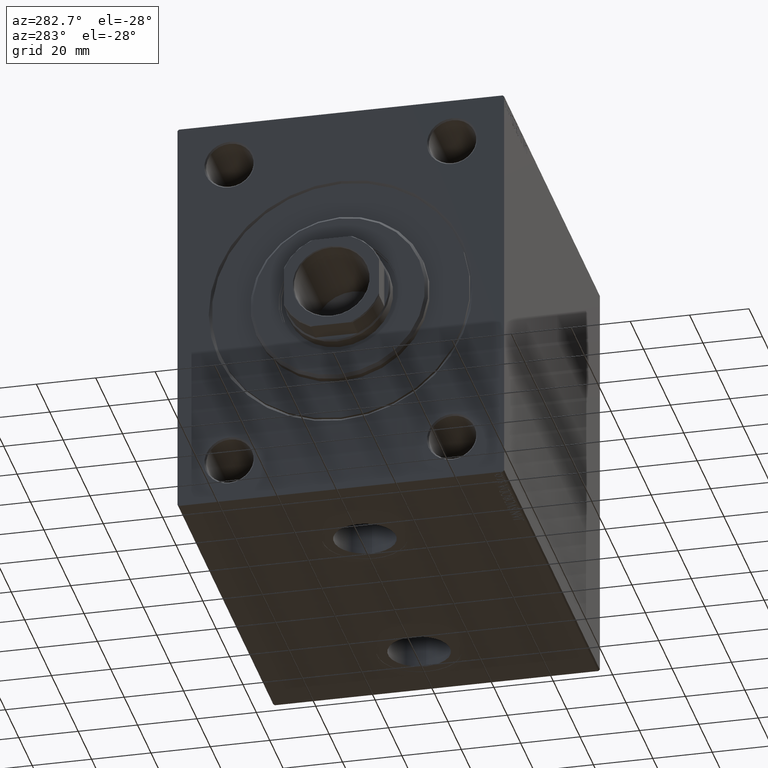
[diagram: clean part render]
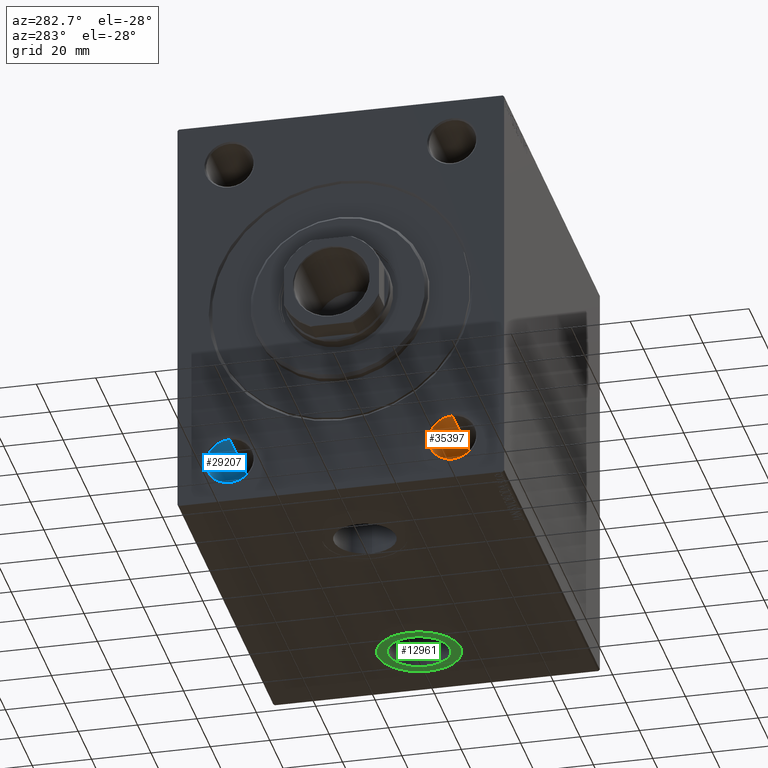
[diagram: same view with three faces highlighted in distinct colors, each labeled with its STEP entity id]
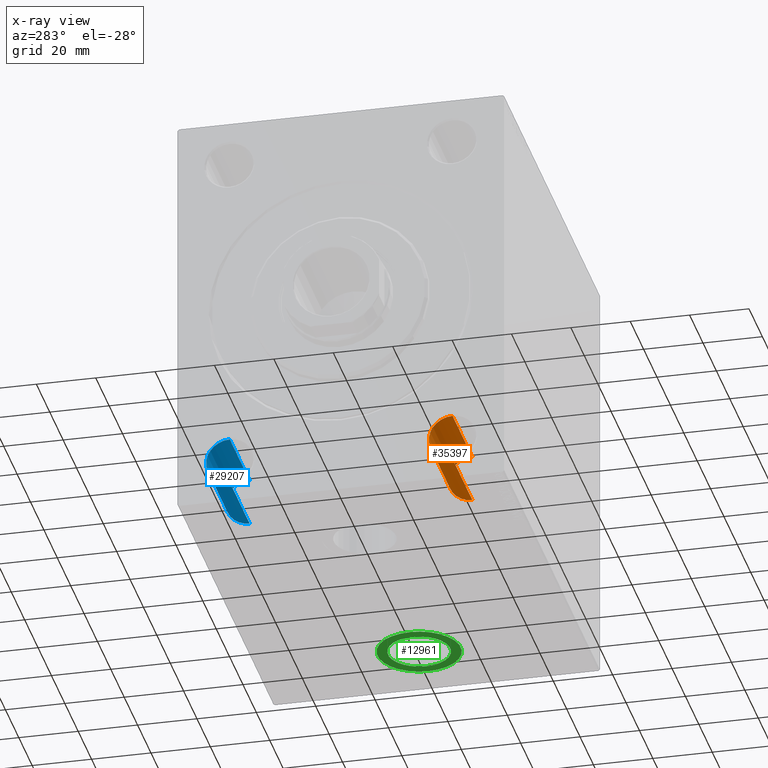
[diagram: x-ray of the same camera — body ghosted, the three highlighted faces saturated]
A machine part, auxiliary view with three faces highlighted in distinct colors.
The next image is the same camera in x-ray (body ghosted, the three faces saturated) — at least one of them is partly hidden behind the body in this view.
Their STEP definitions:

[orange] entity #35397 — the highlighted cylindrical surface (edge-blend (fillet) strip) has radius 8 mm, axis along (-1, -0, -0).
#979 = AXIS2_PLACEMENT_3D ( 'NONE', #16948, #34748, #27132 ) ;
#3026 = VECTOR ( 'NONE', #32262, 1000.000000000000000 ) ;
#3321 = FACE_OUTER_BOUND ( 'NONE', #5058, .T. ) ;
#3616 = EDGE_CURVE ( 'NONE', #7433, #33756, #38528, .T. ) ;
#4703 = ORIENTED_EDGE ( 'NONE', *, *, #44274, .F. ) ;
#4766 = VERTEX_POINT ( 'NONE', #30347 ) ;
#5058 = EDGE_LOOP ( 'NONE', ( #10330, #4703, #15222, #37517 ) ) ;
#6881 = CARTESIAN_POINT ( 'NONE',  ( 0.000000000000000000, -37.49999999999999289, -62.99999999999998579 ) ) ;
#7433 = VERTEX_POINT ( 'NONE', #33721 ) ;
#10330 = ORIENTED_EDGE ( 'NONE', *, *, #3616, .F. ) ;
#13629 = DIRECTION ( 'NONE',  ( -1.000000000000000000, -0.000000000000000000, -0.000000000000000000 ) ) ;
#14078 = CARTESIAN_POINT ( 'NONE',  ( 0.000000000000000000, -37.49999999999999289, -47.00000000000000000 ) ) ;
#14757 = EDGE_CURVE ( 'NONE', #18479, #4766, #30499, .T. ) ;
#15222 = ORIENTED_EDGE ( 'NONE', *, *, #14757, .T. ) ;
#16948 = CARTESIAN_POINT ( 'NONE',  ( 0.000000000000000000, -37.49999999999999289, -54.99999999999999289 ) ) ;
#18208 = DIRECTION ( 'NONE',  ( -1.000000000000000000, 0.000000000000000000, 0.000000000000000000 ) ) ;
#18479 = VERTEX_POINT ( 'NONE', #20410 ) ;
#20338 = CIRCLE ( 'NONE', #35849, 7.999999999999992895 ) ;
#20410 = CARTESIAN_POINT ( 'NONE',  ( 30.00000000000000000, -37.49999999999999289, -47.00000000000000000 ) ) ;
#21667 = DIRECTION ( 'NONE',  ( 0.000000000000000000, 0.000000000000000000, -1.000000000000000000 ) ) ;
#22478 = AXIS2_PLACEMENT_3D ( 'NONE', #29058, #18208, #21667 ) ;
#23143 = EDGE_CURVE ( 'NONE', #4766, #33756, #24676, .T. ) ;
#23655 = CYLINDRICAL_SURFACE ( 'NONE', #979, 7.999999999999992895 ) ;
#24676 = CIRCLE ( 'NONE', #22478, 7.999999999999992895 ) ;
#27132 = DIRECTION ( 'NONE',  ( 0.000000000000000000, 0.000000000000000000, 1.000000000000000000 ) ) ;
#29058 = CARTESIAN_POINT ( 'NONE',  ( 0.5000000000000125455, -37.49999999999999289, -54.99999999999999289 ) ) ;
#29442 = CARTESIAN_POINT ( 'NONE',  ( 30.00000000000000000, -37.49999999999999289, -54.99999999999999289 ) ) ;
#30347 = CARTESIAN_POINT ( 'NONE',  ( 0.5000000000000125455, -37.49999999999999289, -47.00000000000000000 ) ) ;
#30499 = LINE ( 'NONE', #14078, #39330 ) ;
#32262 = DIRECTION ( 'NONE',  ( -1.000000000000000000, -0.000000000000000000, -0.000000000000000000 ) ) ;
#32917 = DIRECTION ( 'NONE',  ( -1.000000000000000000, -0.000000000000000000, -0.000000000000000000 ) ) ;
#33721 = CARTESIAN_POINT ( 'NONE',  ( 30.00000000000000000, -37.49999999999999289, -62.99999999999998579 ) ) ;
#33756 = VERTEX_POINT ( 'NONE', #37728 ) ;
#34748 = DIRECTION ( 'NONE',  ( -1.000000000000000000, -0.000000000000000000, -0.000000000000000000 ) ) ;
#35397 = ADVANCED_FACE ( 'NONE', ( #3321 ), #23655, .F. ) ;
#35849 = AXIS2_PLACEMENT_3D ( 'NONE', #29442, #32917, #36157 ) ;
#36157 = DIRECTION ( 'NONE',  ( 0.000000000000000000, 0.000000000000000000, 1.000000000000000000 ) ) ;
#37517 = ORIENTED_EDGE ( 'NONE', *, *, #23143, .T. ) ;
#37728 = CARTESIAN_POINT ( 'NONE',  ( 0.5000000000000125455, -37.49999999999999289, -62.99999999999998579 ) ) ;
#38528 = LINE ( 'NONE', #6881, #3026 ) ;
#39330 = VECTOR ( 'NONE', #13629, 1000.000000000000000 ) ;
#44274 = EDGE_CURVE ( 'NONE', #18479, #7433, #20338, .T. ) ;

[blue] entity #29207 — the highlighted cylindrical surface (edge-blend (fillet) strip) has radius 8 mm, axis along (-1, -0, -0).
#1560 = DIRECTION ( 'NONE',  ( -1.000000000000000000, -0.000000000000000000, -0.000000000000000000 ) ) ;
#3460 = EDGE_CURVE ( 'NONE', #41473, #12098, #4208, .T. ) ;
#4170 = CARTESIAN_POINT ( 'NONE',  ( 0.000000000000000000, 37.50000000000000000, -47.00000000000000000 ) ) ;
#4208 = LINE ( 'NONE', #5531, #34006 ) ;
#4814 = CYLINDRICAL_SURFACE ( 'NONE', #16736, 7.999999999999992895 ) ;
#5531 = CARTESIAN_POINT ( 'NONE',  ( 0.000000000000000000, 37.50000000000000000, -62.99999999999998579 ) ) ;
#7066 = DIRECTION ( 'NONE',  ( -1.000000000000000000, 0.000000000000000000, 0.000000000000000000 ) ) ;
#8856 = EDGE_CURVE ( 'NONE', #36915, #41473, #15592, .T. ) ;
#9140 = ORIENTED_EDGE ( 'NONE', *, *, #3460, .F. ) ;
#10046 = CARTESIAN_POINT ( 'NONE',  ( 30.00000000000000000, 37.50000000000000000, -54.99999999999999289 ) ) ;
#11959 = CARTESIAN_POINT ( 'NONE',  ( 0.000000000000000000, 37.50000000000000000, -54.99999999999999289 ) ) ;
#12098 = VERTEX_POINT ( 'NONE', #37289 ) ;
#12488 = CARTESIAN_POINT ( 'NONE',  ( 30.00000000000000000, 37.50000000000000000, -47.00000000000000000 ) ) ;
#14403 = VECTOR ( 'NONE', #31637, 1000.000000000000000 ) ;
#15592 = CIRCLE ( 'NONE', #44364, 7.999999999999992895 ) ;
#15648 = DIRECTION ( 'NONE',  ( 0.000000000000000000, 0.000000000000000000, 1.000000000000000000 ) ) ;
#16106 = EDGE_LOOP ( 'NONE', ( #9140, #31442, #40850, #23892 ) ) ;
#16736 = AXIS2_PLACEMENT_3D ( 'NONE', #11959, #1560, #15648 ) ;
#17561 = LINE ( 'NONE', #4170, #14403 ) ;
#18199 = EDGE_CURVE ( 'NONE', #18412, #12098, #28345, .T. ) ;
#18412 = VERTEX_POINT ( 'NONE', #41430 ) ;
#19617 = DIRECTION ( 'NONE',  ( -1.000000000000000000, -0.000000000000000000, -0.000000000000000000 ) ) ;
#23454 = DIRECTION ( 'NONE',  ( -1.000000000000000000, -0.000000000000000000, -0.000000000000000000 ) ) ;
#23892 = ORIENTED_EDGE ( 'NONE', *, *, #18199, .T. ) ;
#25405 = AXIS2_PLACEMENT_3D ( 'NONE', #35010, #7066, #27165 ) ;
#27165 = DIRECTION ( 'NONE',  ( 0.000000000000000000, 0.000000000000000000, -1.000000000000000000 ) ) ;
#28345 = CIRCLE ( 'NONE', #25405, 7.999999999999992895 ) ;
#29207 = ADVANCED_FACE ( 'NONE', ( #36455 ), #4814, .F. ) ;
#31442 = ORIENTED_EDGE ( 'NONE', *, *, #8856, .F. ) ;
#31637 = DIRECTION ( 'NONE',  ( -1.000000000000000000, -0.000000000000000000, -0.000000000000000000 ) ) ;
#34006 = VECTOR ( 'NONE', #19617, 1000.000000000000000 ) ;
#35010 = CARTESIAN_POINT ( 'NONE',  ( 0.5000000000000386358, 37.50000000000000000, -54.99999999999999289 ) ) ;
#36455 = FACE_OUTER_BOUND ( 'NONE', #16106, .T. ) ;
#36915 = VERTEX_POINT ( 'NONE', #12488 ) ;
#37289 = CARTESIAN_POINT ( 'NONE',  ( 0.5000000000000386358, 37.50000000000000000, -62.99999999999998579 ) ) ;
#38239 = DIRECTION ( 'NONE',  ( 0.000000000000000000, 0.000000000000000000, 1.000000000000000000 ) ) ;
#38783 = CARTESIAN_POINT ( 'NONE',  ( 30.00000000000000000, 37.50000000000000000, -62.99999999999998579 ) ) ;
#40850 = ORIENTED_EDGE ( 'NONE', *, *, #43491, .T. ) ;
#41430 = CARTESIAN_POINT ( 'NONE',  ( 0.5000000000000386358, 37.50000000000000000, -47.00000000000000000 ) ) ;
#41473 = VERTEX_POINT ( 'NONE', #38783 ) ;
#43491 = EDGE_CURVE ( 'NONE', #36915, #18412, #17561, .T. ) ;
#44364 = AXIS2_PLACEMENT_3D ( 'NONE', #10046, #23454, #38239 ) ;

[green] entity #12961 — the highlighted planar face has unit normal (0, 0, -1).
#510 = PLANE ( 'NONE',  #18616 ) ;
#1844 = CARTESIAN_POINT ( 'NONE',  ( 127.4799999999999756, -2.612747753614357256E-15, -69.90000000000000568 ) ) ;
#4436 = CARTESIAN_POINT ( 'NONE',  ( 130.9999999999999716, -2.181672080314487909E-15, -69.90000000000000568 ) ) ;
#5884 = DIRECTION ( 'NONE',  ( 0.000000000000000000, 0.000000000000000000, -1.000000000000000000 ) ) ;
#6004 = ORIENTED_EDGE ( 'NONE', *, *, #32444, .T. ) ;
#6065 = VERTEX_POINT ( 'NONE', #4436 ) ;
#6731 = CARTESIAN_POINT ( 'NONE',  ( 116.9999999999999858, -3.896177599120782744E-15, -69.90000000000000568 ) ) ;
#7446 = FACE_BOUND ( 'NONE', #39848, .T. ) ;
#8690 = DIRECTION ( 'NONE',  ( -1.000000000000000000, 0.000000000000000000, 0.000000000000000000 ) ) ;
#8734 = VERTEX_POINT ( 'NONE', #38743 ) ;
#10085 = EDGE_LOOP ( 'NONE', ( #6004, #16078 ) ) ;
#10210 = CIRCLE ( 'NONE', #39726, 13.99999999999999822 ) ;
#10872 = AXIS2_PLACEMENT_3D ( 'NONE', #6731, #17117, #30972 ) ;
#12141 = DIRECTION ( 'NONE',  ( 0.000000000000000000, 0.000000000000000000, -1.000000000000000000 ) ) ;
#12458 = CARTESIAN_POINT ( 'NONE',  ( 102.9999999999999858, -3.896177599120782744E-15, -69.90000000000000568 ) ) ;
#12961 = ADVANCED_FACE ( 'NONE', ( #7446, #21524 ), #510, .T. ) ;
#14600 = CARTESIAN_POINT ( 'NONE',  ( 116.9999999999999858, -3.896177599120782744E-15, -69.90000000000000568 ) ) ;
#15999 = VERTEX_POINT ( 'NONE', #12458 ) ;
#16078 = ORIENTED_EDGE ( 'NONE', *, *, #30667, .T. ) ;
#17117 = DIRECTION ( 'NONE',  ( 0.000000000000000000, 0.000000000000000000, -1.000000000000000000 ) ) ;
#17925 = CARTESIAN_POINT ( 'NONE',  ( 116.9999999999999858, -3.896177599120782744E-15, -69.90000000000000568 ) ) ;
#18120 = AXIS2_PLACEMENT_3D ( 'NONE', #23429, #5884, #37983 ) ;
#18616 = AXIS2_PLACEMENT_3D ( 'NONE', #14600, #28683, #19204 ) ;
#19204 = DIRECTION ( 'NONE',  ( -1.000000000000000000, 0.000000000000000000, -0.000000000000000000 ) ) ;
#21223 = AXIS2_PLACEMENT_3D ( 'NONE', #37658, #41119, #27467 ) ;
#21524 = FACE_OUTER_BOUND ( 'NONE', #10085, .T. ) ;
#21976 = VERTEX_POINT ( 'NONE', #1844 ) ;
#23429 = CARTESIAN_POINT ( 'NONE',  ( 116.9999999999999858, -3.896177599120782744E-15, -69.90000000000000568 ) ) ;
#27467 = DIRECTION ( 'NONE',  ( -1.000000000000000000, 0.000000000000000000, 0.000000000000000000 ) ) ;
#28683 = DIRECTION ( 'NONE',  ( 0.000000000000000000, 0.000000000000000000, -1.000000000000000000 ) ) ;
#29060 = ORIENTED_EDGE ( 'NONE', *, *, #31037, .F. ) ;
#30667 = EDGE_CURVE ( 'NONE', #6065, #15999, #30776, .T. ) ;
#30776 = CIRCLE ( 'NONE', #10872, 13.99999999999999822 ) ;
#30972 = DIRECTION ( 'NONE',  ( -1.000000000000000000, 0.000000000000000000, 0.000000000000000000 ) ) ;
#31037 = EDGE_CURVE ( 'NONE', #21976, #8734, #44122, .T. ) ;
#32444 = EDGE_CURVE ( 'NONE', #15999, #6065, #10210, .T. ) ;
#37658 = CARTESIAN_POINT ( 'NONE',  ( 116.9999999999999858, -3.896177599120782744E-15, -69.90000000000000568 ) ) ;
#37983 = DIRECTION ( 'NONE',  ( -1.000000000000000000, 0.000000000000000000, 0.000000000000000000 ) ) ;
#38064 = CIRCLE ( 'NONE', #18120, 10.48000000000000398 ) ;
#38743 = CARTESIAN_POINT ( 'NONE',  ( 106.5199999999999818, -3.896177599120782744E-15, -69.90000000000000568 ) ) ;
#39352 = ORIENTED_EDGE ( 'NONE', *, *, #44342, .F. ) ;
#39726 = AXIS2_PLACEMENT_3D ( 'NONE', #17925, #12141, #8690 ) ;
#39848 = EDGE_LOOP ( 'NONE', ( #39352, #29060 ) ) ;
#41119 = DIRECTION ( 'NONE',  ( 0.000000000000000000, 0.000000000000000000, -1.000000000000000000 ) ) ;
#44122 = CIRCLE ( 'NONE', #21223, 10.48000000000000398 ) ;
#44342 = EDGE_CURVE ( 'NONE', #8734, #21976, #38064, .T. ) ;